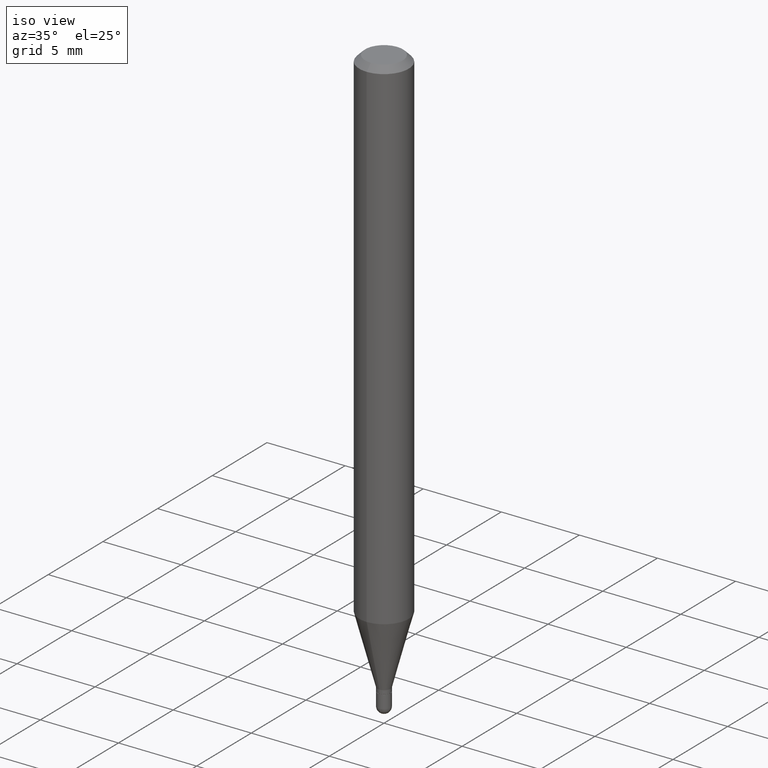
[diagram: clean part render]
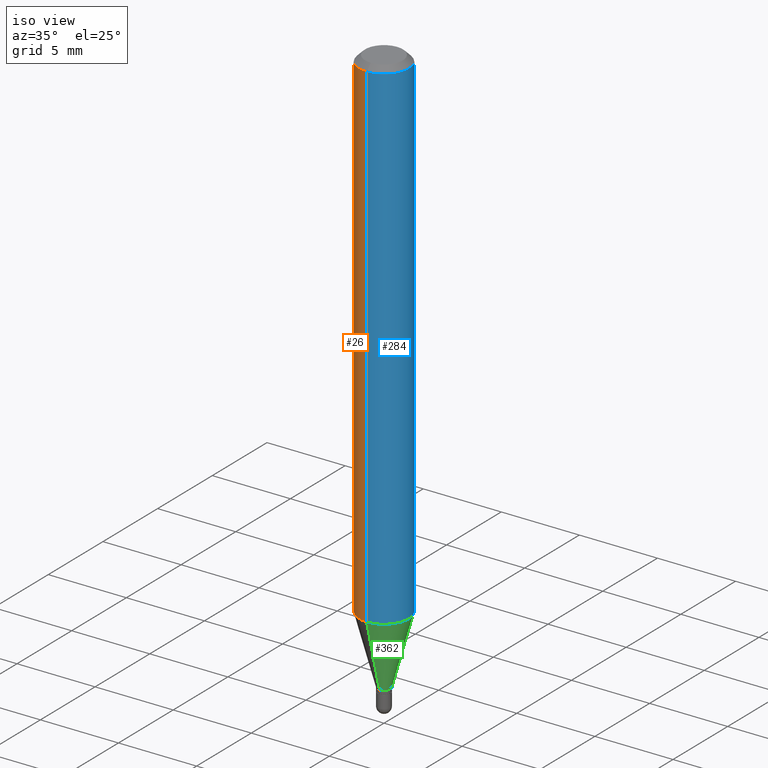
[diagram: same view with three faces highlighted in distinct colors, each labeled with its STEP entity id]
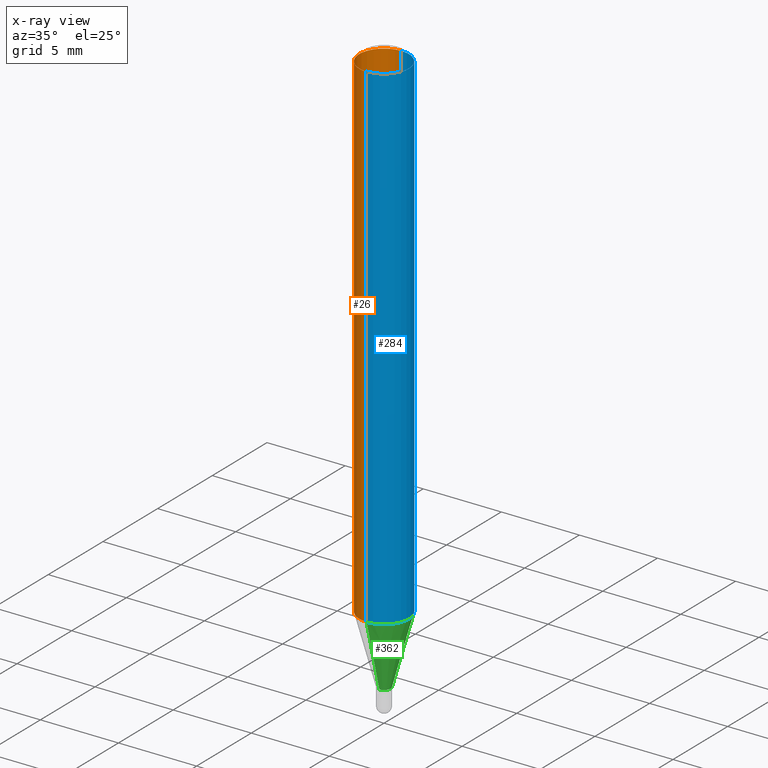
[diagram: x-ray of the same camera — body ghosted, the three highlighted faces saturated]
A machine part, iso view with three faces highlighted in distinct colors.
The next image is the same camera in x-ray (body ghosted, the three faces saturated) — at least one of them is partly hidden behind the body in this view.
Their STEP definitions:

[orange] entity #26 — the highlighted cylindrical surface (edge-blend (fillet) strip) has radius 1.5875 mm, axis along (-0, 0, 1).
#26 = ADVANCED_FACE ( 'NONE', ( #279 ), #229, .T. ) ;
#51 = CIRCLE ( 'NONE', #371, 0.06250000000000000000 ) ;
#65 = DIRECTION ( 'NONE',  ( -2.445479794674199112E-29, 3.491465602701382301E-15, 1.000000000000000000 ) ) ;
#69 = ORIENTED_EDGE ( 'NONE', *, *, #368, .T. ) ;
#76 = ORIENTED_EDGE ( 'NONE', *, *, #111, .T. ) ;
#77 = LINE ( 'NONE', #116, #278 ) ;
#88 = VERTEX_POINT ( 'NONE', #418 ) ;
#91 = VERTEX_POINT ( 'NONE', #114 ) ;
#97 = VECTOR ( 'NONE', #476, 39.37007874015748143 ) ;
#102 = VERTEX_POINT ( 'NONE', #422 ) ;
#107 = CIRCLE ( 'NONE', #191, 0.06250000000000000000 ) ;
#111 = EDGE_CURVE ( 'NONE', #102, #88, #107, .T. ) ;
#114 = CARTESIAN_POINT ( 'NONE',  ( 4.440892098500937762E-16, 0.06249999999999993755, -0.01500000000000022669 ) ) ;
#116 = CARTESIAN_POINT ( 'NONE',  ( -4.364351673553916201E-16, -0.06250000000000000000, 2.182166001688363938E-16 ) ) ;
#118 = CARTESIAN_POINT ( 'NONE',  ( 4.440892098500625669E-16, 0.06250000000000000000, -2.182166001688363938E-16 ) ) ;
#123 = DIRECTION ( 'NONE',  ( -2.445479794674199112E-29, 3.491465602701382301E-15, 1.000000000000000000 ) ) ;
#154 = CARTESIAN_POINT ( 'NONE',  ( 3.101664781570917054E-29, -4.428315424870604109E-15, -1.268325662851832680 ) ) ;
#174 = EDGE_LOOP ( 'NONE', ( #434, #76, #69, #447 ) ) ;
#191 = AXIS2_PLACEMENT_3D ( 'NONE', #154, #65, #502 ) ;
#201 = DIRECTION ( 'NONE',  ( -6.982962677686265922E-15, -1.000000000000000000, 3.483106191921935554E-15 ) ) ;
#229 = CYLINDRICAL_SURFACE ( 'NONE', #289, 0.06250000000000000000 ) ;
#251 = EDGE_CURVE ( 'NONE', #91, #432, #51, .T. ) ;
#265 = EDGE_CURVE ( 'NONE', #102, #91, #439, .T. ) ;
#272 = DIRECTION ( 'NONE',  ( -6.982962677686265922E-15, -1.000000000000000000, 3.491465602701382301E-15 ) ) ;
#278 = VECTOR ( 'NONE', #433, 39.37007874015748143 ) ;
#279 = FACE_OUTER_BOUND ( 'NONE', #174, .T. ) ;
#289 = AXIS2_PLACEMENT_3D ( 'NONE', #303, #452, #272 ) ;
#303 = CARTESIAN_POINT ( 'NONE',  ( 0.000000000000000000, 0.000000000000000000, 0.000000000000000000 ) ) ;
#321 = CARTESIAN_POINT ( 'NONE',  ( 3.668219692011300648E-31, -5.237198404052076484E-17, -0.01500000000000000812 ) ) ;
#368 = EDGE_CURVE ( 'NONE', #88, #432, #77, .T. ) ;
#371 = AXIS2_PLACEMENT_3D ( 'NONE', #321, #123, #201 ) ;
#418 = CARTESIAN_POINT ( 'NONE',  ( -4.364351673553608052E-16, -0.06250000000000444089, -1.268325662851832236 ) ) ;
#422 = CARTESIAN_POINT ( 'NONE',  ( 4.440892098500933817E-16, 0.06249999999999555911, -1.268325662851832902 ) ) ;
#432 = VERTEX_POINT ( 'NONE', #440 ) ;
#433 = DIRECTION ( 'NONE',  ( -2.445479794674199112E-29, 3.491465602701382696E-15, 1.000000000000000000 ) ) ;
#434 = ORIENTED_EDGE ( 'NONE', *, *, #265, .F. ) ;
#439 = LINE ( 'NONE', #118, #97 ) ;
#440 = CARTESIAN_POINT ( 'NONE',  ( -4.364351673553912750E-16, -0.06250000000000005551, -0.01499999999999979128 ) ) ;
#447 = ORIENTED_EDGE ( 'NONE', *, *, #251, .F. ) ;
#452 = DIRECTION ( 'NONE',  ( -2.445479794674199112E-29, 3.491465602701382301E-15, 1.000000000000000000 ) ) ;
#476 = DIRECTION ( 'NONE',  ( -2.445479794674199112E-29, 3.491465602701382696E-15, 1.000000000000000000 ) ) ;
#502 = DIRECTION ( 'NONE',  ( -6.982962677686265922E-15, -1.000000000000000000, 4.370956789862821150E-15 ) ) ;

[blue] entity #284 — the highlighted cylindrical surface (edge-blend (fillet) strip) has radius 1.5875 mm, axis along (-0, 0, 1).
#4 = DIRECTION ( 'NONE',  ( -6.982962677686265922E-15, -1.000000000000000000, 3.491465602701382301E-15 ) ) ;
#22 = EDGE_LOOP ( 'NONE', ( #155, #375, #98, #261 ) ) ;
#41 = DIRECTION ( 'NONE',  ( -2.445479794674199112E-29, 3.491465602701382301E-15, 1.000000000000000000 ) ) ;
#74 = CARTESIAN_POINT ( 'NONE',  ( 3.668219692011300648E-31, -5.237198404052076484E-17, -0.01500000000000000812 ) ) ;
#77 = LINE ( 'NONE', #116, #278 ) ;
#82 = AXIS2_PLACEMENT_3D ( 'NONE', #468, #41, #467 ) ;
#88 = VERTEX_POINT ( 'NONE', #418 ) ;
#91 = VERTEX_POINT ( 'NONE', #114 ) ;
#97 = VECTOR ( 'NONE', #476, 39.37007874015748143 ) ;
#98 = ORIENTED_EDGE ( 'NONE', *, *, #347, .F. ) ;
#102 = VERTEX_POINT ( 'NONE', #422 ) ;
#114 = CARTESIAN_POINT ( 'NONE',  ( 4.440892098500937762E-16, 0.06249999999999993755, -0.01500000000000022669 ) ) ;
#116 = CARTESIAN_POINT ( 'NONE',  ( -4.364351673553916201E-16, -0.06250000000000000000, 2.182166001688363938E-16 ) ) ;
#118 = CARTESIAN_POINT ( 'NONE',  ( 4.440892098500625669E-16, 0.06250000000000000000, -2.182166001688363938E-16 ) ) ;
#120 = CARTESIAN_POINT ( 'NONE',  ( 0.000000000000000000, 0.000000000000000000, 0.000000000000000000 ) ) ;
#122 = CIRCLE ( 'NONE', #82, 0.06250000000000000000 ) ;
#155 = ORIENTED_EDGE ( 'NONE', *, *, #237, .T. ) ;
#162 = DIRECTION ( 'NONE',  ( -2.445479794674199112E-29, 3.491465602701382301E-15, 1.000000000000000000 ) ) ;
#165 = DIRECTION ( 'NONE',  ( -6.982962677686265922E-15, -1.000000000000000000, 3.483106191921935554E-15 ) ) ;
#237 = EDGE_CURVE ( 'NONE', #88, #102, #122, .T. ) ;
#241 = DIRECTION ( 'NONE',  ( -2.445479794674199112E-29, 3.491465602701382301E-15, 1.000000000000000000 ) ) ;
#261 = ORIENTED_EDGE ( 'NONE', *, *, #368, .F. ) ;
#265 = EDGE_CURVE ( 'NONE', #102, #91, #439, .T. ) ;
#278 = VECTOR ( 'NONE', #433, 39.37007874015748143 ) ;
#281 = FACE_OUTER_BOUND ( 'NONE', #22, .T. ) ;
#284 = ADVANCED_FACE ( 'NONE', ( #281 ), #394, .T. ) ;
#347 = EDGE_CURVE ( 'NONE', #432, #91, #349, .T. ) ;
#349 = CIRCLE ( 'NONE', #408, 0.06250000000000000000 ) ;
#368 = EDGE_CURVE ( 'NONE', #88, #432, #77, .T. ) ;
#375 = ORIENTED_EDGE ( 'NONE', *, *, #265, .T. ) ;
#394 = CYLINDRICAL_SURFACE ( 'NONE', #510, 0.06250000000000000000 ) ;
#408 = AXIS2_PLACEMENT_3D ( 'NONE', #74, #162, #165 ) ;
#418 = CARTESIAN_POINT ( 'NONE',  ( -4.364351673553608052E-16, -0.06250000000000444089, -1.268325662851832236 ) ) ;
#422 = CARTESIAN_POINT ( 'NONE',  ( 4.440892098500933817E-16, 0.06249999999999555911, -1.268325662851832902 ) ) ;
#432 = VERTEX_POINT ( 'NONE', #440 ) ;
#433 = DIRECTION ( 'NONE',  ( -2.445479794674199112E-29, 3.491465602701382696E-15, 1.000000000000000000 ) ) ;
#439 = LINE ( 'NONE', #118, #97 ) ;
#440 = CARTESIAN_POINT ( 'NONE',  ( -4.364351673553912750E-16, -0.06250000000000005551, -0.01499999999999979128 ) ) ;
#467 = DIRECTION ( 'NONE',  ( -6.982962677686265922E-15, -1.000000000000000000, 4.370956789862821150E-15 ) ) ;
#468 = CARTESIAN_POINT ( 'NONE',  ( 3.101664781570917054E-29, -4.428315424870604109E-15, -1.268325662851832680 ) ) ;
#476 = DIRECTION ( 'NONE',  ( -2.445479794674199112E-29, 3.491465602701382696E-15, 1.000000000000000000 ) ) ;
#510 = AXIS2_PLACEMENT_3D ( 'NONE', #120, #241, #4 ) ;

[green] entity #362 — the highlighted conical surface has half-angle 15 deg.
#10 = CARTESIAN_POINT ( 'NONE',  ( 2.806643806252725111E-16, 0.01649999999999489375, -1.440000000000000169 ) ) ;
#35 = DIRECTION ( 'NONE',  ( 1.839019923739605048E-15, 0.2588190451025256245, 0.9659258262890669799 ) ) ;
#41 = DIRECTION ( 'NONE',  ( -2.445479794674199112E-29, 3.491465602701382301E-15, 1.000000000000000000 ) ) ;
#54 = ORIENTED_EDGE ( 'NONE', *, *, #68, .T. ) ;
#66 = LINE ( 'NONE', #390, #337 ) ;
#68 = EDGE_CURVE ( 'NONE', #450, #102, #66, .T. ) ;
#82 = AXIS2_PLACEMENT_3D ( 'NONE', #468, #41, #467 ) ;
#83 = DIRECTION ( 'NONE',  ( -2.445479794674199112E-29, 3.491465602701382301E-15, 1.000000000000000000 ) ) ;
#87 = CIRCLE ( 'NONE', #438, 0.01649999999999992445 ) ;
#88 = VERTEX_POINT ( 'NONE', #418 ) ;
#102 = VERTEX_POINT ( 'NONE', #422 ) ;
#122 = CIRCLE ( 'NONE', #82, 0.06250000000000000000 ) ;
#130 = EDGE_LOOP ( 'NONE', ( #471, #54, #163, #184 ) ) ;
#157 = DIRECTION ( 'NONE',  ( -2.445479794674199112E-29, 3.491465602701382301E-15, 1.000000000000000000 ) ) ;
#163 = ORIENTED_EDGE ( 'NONE', *, *, #237, .F. ) ;
#173 = CARTESIAN_POINT ( 'NONE',  ( -1.152188841817876318E-16, -0.01650000000000495168, -1.440000000000000169 ) ) ;
#184 = ORIENTED_EDGE ( 'NONE', *, *, #449, .F. ) ;
#192 = VECTOR ( 'NONE', #330, 39.37007874015748854 ) ;
#237 = EDGE_CURVE ( 'NONE', #88, #102, #122, .T. ) ;
#245 = EDGE_CURVE ( 'NONE', #412, #450, #87, .T. ) ;
#283 = DIRECTION ( 'NONE',  ( -6.982962677686265922E-15, -1.000000000000000000, 0.000000000000000000 ) ) ;
#326 = LINE ( 'NONE', #335, #192 ) ;
#330 = DIRECTION ( 'NONE',  ( -1.807323732225334872E-15, -0.2588190451025188521, 0.9659258262890687563 ) ) ;
#335 = CARTESIAN_POINT ( 'NONE',  ( -1.152188841817876318E-16, -0.01650000000000495168, -1.440000000000000169 ) ) ;
#337 = VECTOR ( 'NONE', #35, 39.37007874015748143 ) ;
#352 = FACE_OUTER_BOUND ( 'NONE', #130, .T. ) ;
#362 = ADVANCED_FACE ( 'NONE', ( #352 ), #398, .T. ) ;
#390 = CARTESIAN_POINT ( 'NONE',  ( 1.172395514004511721E-16, 0.01649999999999489375, -1.440000000000000169 ) ) ;
#398 = CONICAL_SURFACE ( 'NONE', #474, 0.01649999999999992445, 0.2617993877991509621 ) ;
#412 = VERTEX_POINT ( 'NONE', #173 ) ;
#418 = CARTESIAN_POINT ( 'NONE',  ( -4.364351673553608052E-16, -0.06250000000000444089, -1.268325662851832236 ) ) ;
#422 = CARTESIAN_POINT ( 'NONE',  ( 4.440892098500933817E-16, 0.06249999999999555911, -1.268325662851832902 ) ) ;
#438 = AXIS2_PLACEMENT_3D ( 'NONE', #472, #83, #283 ) ;
#449 = EDGE_CURVE ( 'NONE', #412, #88, #326, .T. ) ;
#450 = VERTEX_POINT ( 'NONE', #10 ) ;
#465 = DIRECTION ( 'NONE',  ( -6.982962677686265922E-15, -1.000000000000000000, 0.000000000000000000 ) ) ;
#467 = DIRECTION ( 'NONE',  ( -6.982962677686265922E-15, -1.000000000000000000, 4.370956789862821150E-15 ) ) ;
#468 = CARTESIAN_POINT ( 'NONE',  ( 3.101664781570917054E-29, -4.428315424870604109E-15, -1.268325662851832680 ) ) ;
#471 = ORIENTED_EDGE ( 'NONE', *, *, #245, .T. ) ;
#472 = CARTESIAN_POINT ( 'NONE',  ( 3.521490904330847641E-29, -5.027710467889990861E-15, -1.440000000000000169 ) ) ;
#474 = AXIS2_PLACEMENT_3D ( 'NONE', #507, #157, #465 ) ;
#507 = CARTESIAN_POINT ( 'NONE',  ( 3.521490904330847641E-29, -5.027710467889990861E-15, -1.440000000000000169 ) ) ;